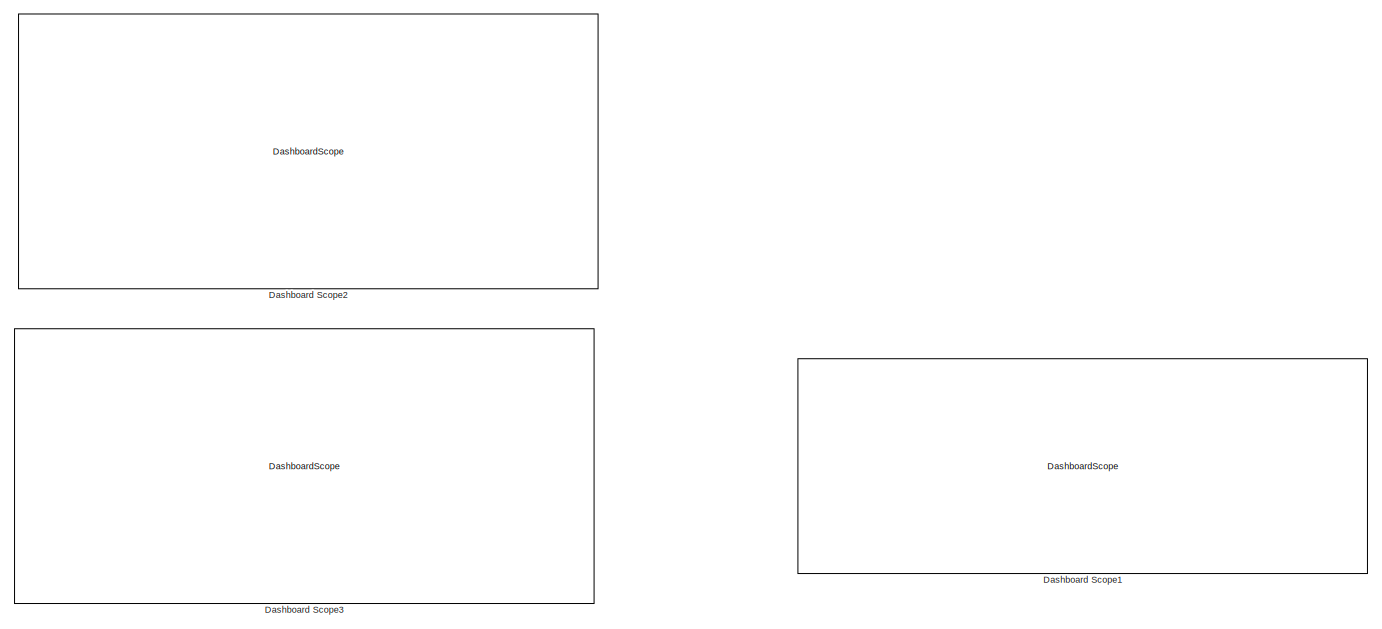
[diagram: root canvas - part 1/4, middle right region]
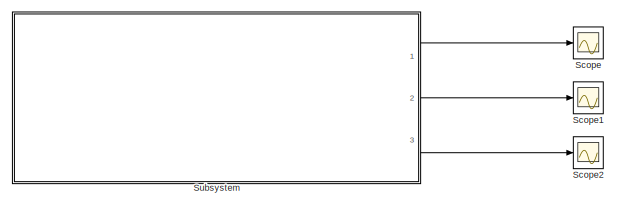
[diagram: root canvas - part 2/4, middle left region]
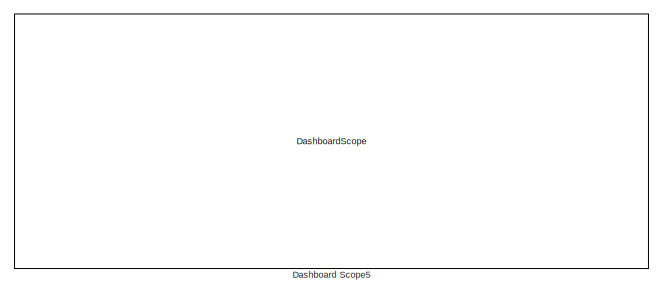
[diagram: root canvas - part 3/4, bottom right region]
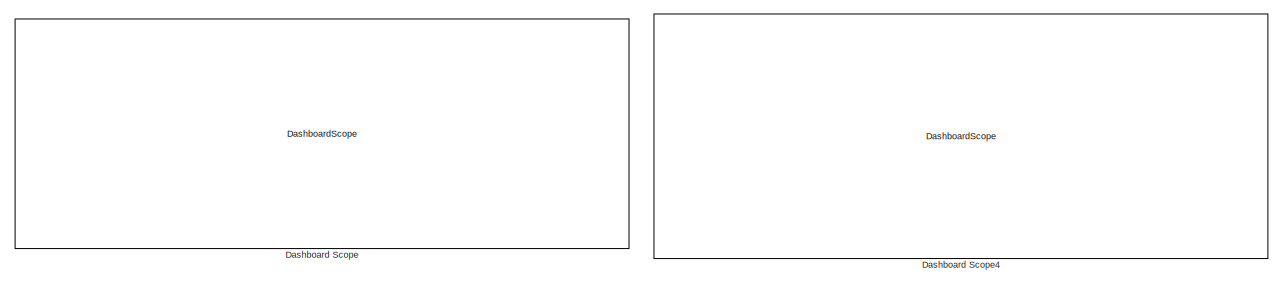
[diagram: root canvas - part 4/4, bottom left region]
MODEL slx_237427a385bd
KIND model
CONFIG AbsTol = auto
CONFIG EnableMultiTasking = off
CONFIG FixedStep = auto
CONFIG MaxStep = auto
CONFIG MinStep = auto
CONFIG RelTol = 1e-3
CONFIG SampleTimeConstraint = Unconstrained
CONFIG SolverName = VariableStepAuto
CONFIG StartTime = 0.0
CONFIG StopTime = 30
BLOCK [DashboardScope] Dashboard Scope
BLOCK [DashboardScope] Dashboard Scope1
BLOCK [DashboardScope] Dashboard Scope2
BLOCK [DashboardScope] Dashboard Scope3
BLOCK [DashboardScope] Dashboard Scope4
BLOCK [DashboardScope] Dashboard Scope5
BLOCK [Scope] Scope
  Floating = off
  NumInputPorts = 1
  Ports = [1]
  ScopeSpecificationString = Simulink.scopes.TimeScopeBlockCfg('CurrentConfiguration', extmgr.ConfigurationSet(extmgr.Configuration('Core','General UI',true),extmgr.Configuration('Core','Source UI',true),extmgr.Configuration('Sources','WiredSimulink',true),extmgr.Configuration('Visuals','Time Domain',true),extmgr.Configuration('Tools','Plot Navigation',true),extmgr.Configuration('Tools','Measurements',true)),'Version','2021b'...<+1ch>
BLOCK [Scope] Scope1
  Floating = off
  NumInputPorts = 1
  Ports = [1]
  ScopeSpecificationString = Simulink.scopes.TimeScopeBlockCfg('CurrentConfiguration', extmgr.ConfigurationSet(extmgr.Configuration('Core','General UI',true),extmgr.Configuration('Core','Source UI',true),extmgr.Configuration('Sources','WiredSimulink',true,'DataLoggingVariableName','ScopeData1'),extmgr.Configuration('Visuals','Time Domain',true),extmgr.Configuration('Tools','Plot Navigation',true),extmgr.Configuration('Tools',...<+40ch>
BLOCK [Scope] Scope2
  Floating = off
  NumInputPorts = 1
  Ports = [1]
  ScopeSpecificationString = Simulink.scopes.TimeScopeBlockCfg('CurrentConfiguration', extmgr.ConfigurationSet(extmgr.Configuration('Core','General UI',true),extmgr.Configuration('Core','Source UI',true),extmgr.Configuration('Sources','WiredSimulink',true,'DataLoggingVariableName','ScopeData2'),extmgr.Configuration('Visuals','Time Domain',true),extmgr.Configuration('Tools','Plot Navigation',true),extmgr.Configuration('Tools',...<+40ch>
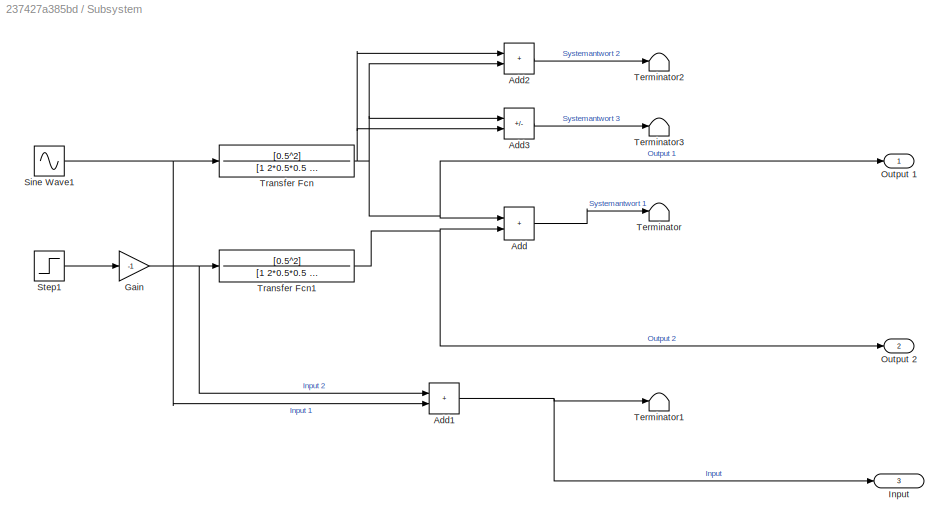
BLOCK [SubSystem] Subsystem
  Ports = [0, 3]
  RequestExecContextInheritance = off
BLOCK [Sum] Subsystem/Add
  IconShape = rectangular
  Ports = [2, 1]
BLOCK [Sum] Subsystem/Add1
  IconShape = rectangular
  Ports = [2, 1]
BLOCK [Sum] Subsystem/Add2
  IconShape = rectangular
  Ports = [2, 1]
BLOCK [Sum] Subsystem/Add3
  IconShape = rectangular
  Inputs = --
  Ports = [2, 1]
BLOCK [Gain] Subsystem/Gain
  Gain = -1
BLOCK [Outport] Subsystem/Input
  Port = 3
BLOCK [Outport] Subsystem/Output 1
BLOCK [Outport] Subsystem/Output 2
  Port = 2
BLOCK [Sin] Subsystem/Sine Wave1
  Ports = [0, 1]
  SampleTime = 5
BLOCK [Step] Subsystem/Step1
  SampleTime = 0
  Time = 10
BLOCK [Terminator] Subsystem/Terminator
BLOCK [Terminator] Subsystem/Terminator1
BLOCK [Terminator] Subsystem/Terminator2
BLOCK [Terminator] Subsystem/Terminator3
BLOCK [TransferFcn] Subsystem/Transfer Fcn
  Denominator = [1 2*0.5*0.5 0.5^2]
  Numerator = [0.5^2]
BLOCK [TransferFcn] Subsystem/Transfer Fcn1
  Denominator = [1 2*0.5*0.5 0.5^2]
  Numerator = [0.5^2]
NET Subsystem/Add1:1 -> Subsystem/Input:1, Subsystem/Terminator1:1
LINE Subsystem/Add2:1 -> Subsystem/Terminator2:1
LINE Subsystem/Add3:1 -> Subsystem/Terminator3:1
LINE Subsystem/Add:1 -> Subsystem/Terminator:1
NET Subsystem/Gain:1 -> Subsystem/Add1:1, Subsystem/Transfer Fcn1:1
NET Subsystem/Sine Wave1:1 -> Subsystem/Add1:2, Subsystem/Transfer Fcn:1
LINE Subsystem/Step1:1 -> Subsystem/Gain:1
NET Subsystem/Transfer Fcn1:1 -> Subsystem/Add:2, Subsystem/Output 2:1
NET Subsystem/Transfer Fcn:1 -> Subsystem/Add2:1, Subsystem/Add2:2, Subsystem/Add3:1, Subsystem/Add3:2, Subsystem/Add:1, Subsystem/Output 1:1
LINE Subsystem:1 -> Scope:1
LINE Subsystem:2 -> Scope1:1
LINE Subsystem:3 -> Scope2:1
note: NET lines group one-source signal fan-out (src -> all destinations, sorted); 1:1 wires keep LINE
